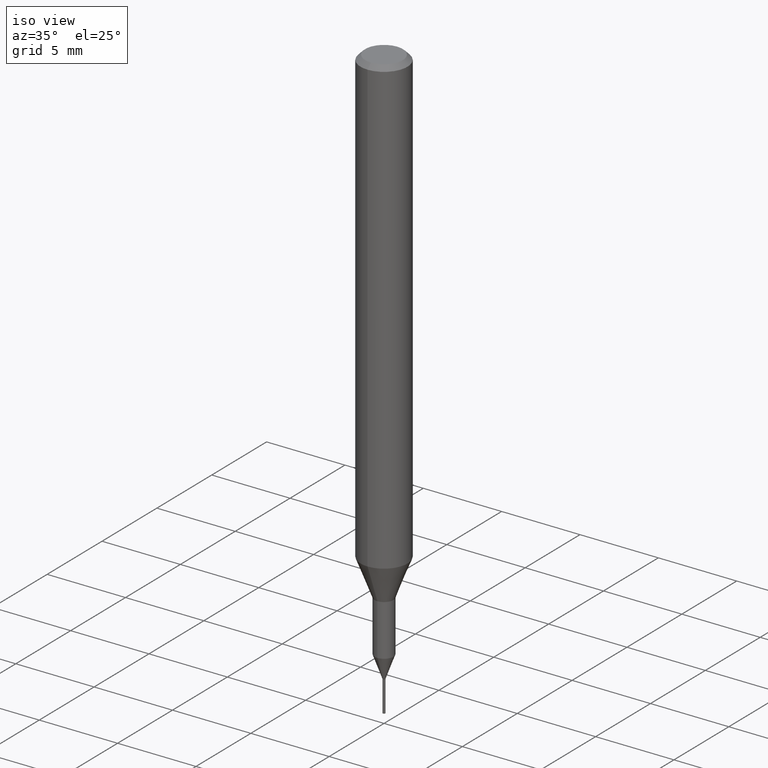
[diagram: clean part render]
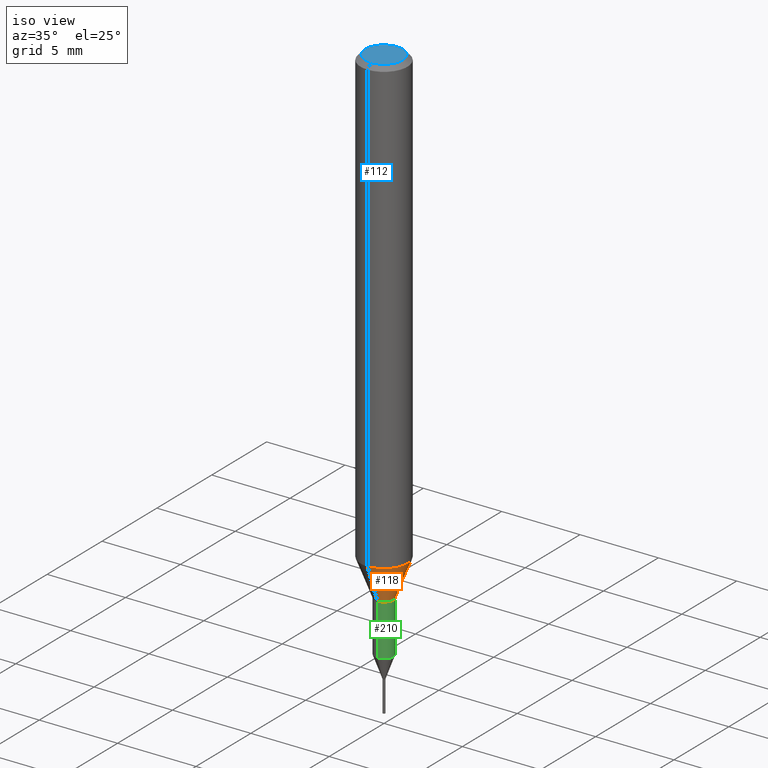
[diagram: same view with three faces highlighted in distinct colors, each labeled with its STEP entity id]
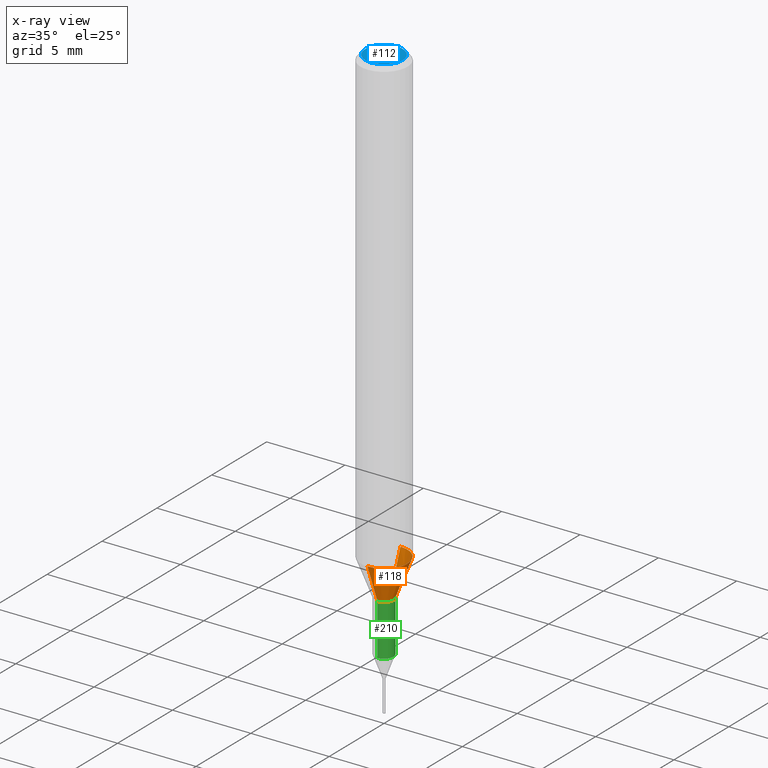
[diagram: x-ray of the same camera — body ghosted, the three highlighted faces saturated]
A machine part, iso view with three faces highlighted in distinct colors.
The next image is the same camera in x-ray (body ghosted, the three faces saturated) — at least one of them is partly hidden behind the body in this view.
Their STEP definitions:

[orange] entity #118 — the highlighted conical surface has half-angle 20.997 deg.
#118=ADVANCED_FACE('',(#297),#298,.T.);
#140=VERTEX_POINT('',#322);
#146=EDGE_CURVE('',#182,#218,#329,.T.);
#150=EDGE_CURVE('',#140,#218,#333,.T.);
#182=VERTEX_POINT('',#368);
#198=EDGE_CURVE('',#262,#182,#389,.T.);
#206=EDGE_CURVE('',#140,#262,#398,.T.);
#218=VERTEX_POINT('',#411);
#262=VERTEX_POINT('',#459);
#297=FACE_OUTER_BOUND('',#488,.T.);
#298=CONICAL_SURFACE('',#489,1.05,0.366459241971866);
#322=CARTESIAN_POINT('',(0.0,1.5,-28.955));
#329=LINE('',#529,#530);
#333=CIRCLE('',#536,1.5);
#368=CARTESIAN_POINT('',(7.34763812293426E-017,-0.6,-31.3));
#389=CIRCLE('',#605,0.6);
#398=LINE('',#618,#619);
#411=CARTESIAN_POINT('',(1.83690953073357E-016,-1.5,-28.955));
#459=CARTESIAN_POINT('',(0.0,0.6,-31.3));
#488=EDGE_LOOP('',(#725,#726,#727,#728));
#489=AXIS2_PLACEMENT_3D('',#729,#730,#731);
#529=CARTESIAN_POINT('',(1.2858366715135E-016,-1.05,-30.1275));
#530=VECTOR('',#765,1.0);
#536=AXIS2_PLACEMENT_3D('',#769,#770,#771);
#605=AXIS2_PLACEMENT_3D('',#852,#853,#854);
#618=CARTESIAN_POINT('',(-1.2858366715135E-016,1.05,-30.1275));
#619=VECTOR('',#867,1.0);
#725=ORIENTED_EDGE('',*,*,#206,.F.);
#726=ORIENTED_EDGE('',*,*,#150,.T.);
#727=ORIENTED_EDGE('',*,*,#146,.F.);
#728=ORIENTED_EDGE('',*,*,#198,.F.);
#729=CARTESIAN_POINT('',(0.0,0.0,-30.1275));
#730=DIRECTION('',(-0.0,-0.0,1.0));
#731=DIRECTION('',(0.0,1.0,0.0));
#765=DIRECTION('',(4.38791184365088E-017,-0.358312026550805,0.93360189140182));
#769=CARTESIAN_POINT('',(0.0,0.0,-28.955));
#770=DIRECTION('',(0.0,0.0,-1.0));
#771=DIRECTION('',(0.0,1.0,0.0));
#852=CARTESIAN_POINT('',(0.0,0.0,-31.3));
#853=DIRECTION('',(0.0,0.0,-1.0));
#854=DIRECTION('',(0.0,1.0,0.0));
#867=DIRECTION('',(4.38791184365088E-017,-0.358312026550805,-0.93360189140182));

[blue] entity #112 — the highlighted planar face has unit normal (-0, 0, 1).
#112=ADVANCED_FACE('',(#289),#290,.T.);
#168=EDGE_CURVE('',#224,#254,#354,.T.);
#180=EDGE_CURVE('',#254,#224,#366,.T.);
#224=VERTEX_POINT('',#417);
#254=VERTEX_POINT('',#449);
#289=FACE_OUTER_BOUND('',#479,.T.);
#290=PLANE('',#480);
#354=CIRCLE('',#562,1.2);
#366=CIRCLE('',#580,1.2);
#417=CARTESIAN_POINT('',(1.46952762458685E-016,-1.2,0.0));
#449=CARTESIAN_POINT('',(0.0,1.2,0.0));
#479=EDGE_LOOP('',(#709,#710));
#480=AXIS2_PLACEMENT_3D('',#711,#712,#713);
#562=AXIS2_PLACEMENT_3D('',#806,#807,#808);
#580=AXIS2_PLACEMENT_3D('',#814,#815,#816);
#709=ORIENTED_EDGE('',*,*,#180,.F.);
#710=ORIENTED_EDGE('',*,*,#168,.F.);
#711=CARTESIAN_POINT('',(0.0,0.6,0.0));
#712=DIRECTION('',(-0.0,0.0,1.0));
#713=DIRECTION('',(0.0,-1.0,0.0));
#806=CARTESIAN_POINT('',(0.0,0.0,0.0));
#807=DIRECTION('',(0.0,0.0,-1.0));
#808=DIRECTION('',(0.0,1.0,0.0));
#814=CARTESIAN_POINT('',(0.0,0.0,0.0));
#815=DIRECTION('',(0.0,0.0,-1.0));
#816=DIRECTION('',(0.0,1.0,0.0));

[green] entity #210 — the highlighted cylindrical surface (edge-blend (fillet) strip) has radius 0.5999 mm, axis along (-0, -0, 1).
#126=VERTEX_POINT('',#307);
#132=EDGE_CURVE('',#250,#190,#313,.T.);
#164=EDGE_CURVE('',#190,#192,#350,.T.);
#190=VERTEX_POINT('',#379);
#192=VERTEX_POINT('',#381);
#210=ADVANCED_FACE('',(#402),#403,.T.);
#214=EDGE_CURVE('',#250,#126,#407,.T.);
#246=EDGE_CURVE('',#192,#126,#441,.T.);
#250=VERTEX_POINT('',#445);
#307=CARTESIAN_POINT('',(7.34702581975735E-017,-0.59995,-31.3));
#313=LINE('',#510,#511);
#350=CIRCLE('',#556,0.59995);
#379=CARTESIAN_POINT('',(0.0,0.59995,-34.571));
#381=CARTESIAN_POINT('',(7.34702581975735E-017,-0.59995,-34.571));
#402=FACE_OUTER_BOUND('',#624,.T.);
#403=CYLINDRICAL_SURFACE('',#625,0.59995);
#407=CIRCLE('',#632,0.59995);
#441=LINE('',#677,#678);
#445=CARTESIAN_POINT('',(0.0,0.59995,-31.3));
#510=CARTESIAN_POINT('',(-7.34702581975735E-017,0.59995,-32.9355));
#511=VECTOR('',#745,1.0);
#556=AXIS2_PLACEMENT_3D('',#800,#801,#802);
#624=EDGE_LOOP('',(#872,#873,#874,#875));
#625=AXIS2_PLACEMENT_3D('',#876,#877,#878);
#632=AXIS2_PLACEMENT_3D('',#880,#881,#882);
#677=CARTESIAN_POINT('',(7.34702581975735E-017,-0.59995,-32.9355));
#678=VECTOR('',#911,1.0);
#745=DIRECTION('',(0.0,0.0,-1.0));
#800=CARTESIAN_POINT('',(0.0,0.0,-34.571));
#801=DIRECTION('',(0.0,0.0,-1.0));
#802=DIRECTION('',(0.0,1.0,0.0));
#872=ORIENTED_EDGE('',*,*,#132,.F.);
#873=ORIENTED_EDGE('',*,*,#214,.T.);
#874=ORIENTED_EDGE('',*,*,#246,.F.);
#875=ORIENTED_EDGE('',*,*,#164,.F.);
#876=CARTESIAN_POINT('',(0.0,0.0,-32.9355));
#877=DIRECTION('',(-0.0,-0.0,1.0));
#878=DIRECTION('',(0.0,1.0,0.0));
#880=CARTESIAN_POINT('',(0.0,0.0,-31.3));
#881=DIRECTION('',(0.0,0.0,-1.0));
#882=DIRECTION('',(0.0,1.0,0.0));
#911=DIRECTION('',(-0.0,-0.0,1.0));